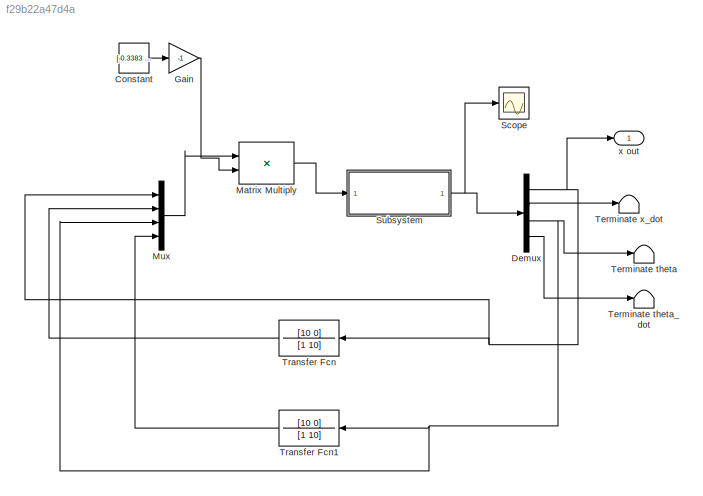
MODEL slx_f29b22a47d4a
KIND model
BLOCK [Constant] Constant
  Value = [-0.3383   -0.7048  -11.4314   -1.5922]
BLOCK [Demux] Demux
  DisplayOption = bar
  Ports = [1, 4]
BLOCK [Gain] Gain
  Gain = -1
  OutDataTypeStr = Inherit: Inherit via internal rule
  ParamDataTypeStr = Inherit: Inherit via internal rule
  SaturateOnIntegerOverflow = off
BLOCK [Product] Matrix Multiply
  InputSameDT = off
  Multiplication = Matrix(*)
  OutDataTypeStr = Inherit: Inherit via internal rule
  Ports = [2, 1]
  RndMeth = Floor
  SaturateOnIntegerOverflow = off
BLOCK [Mux] Mux
  DisplayOption = bar
  Ports = [4, 1]
BLOCK [Scope] Scope
  DataFormat = StructureWithTime
  Floating = off
  NumInputPorts = 1
  Ports = [1]
  SampleTime = 0
  ShowLegends = on
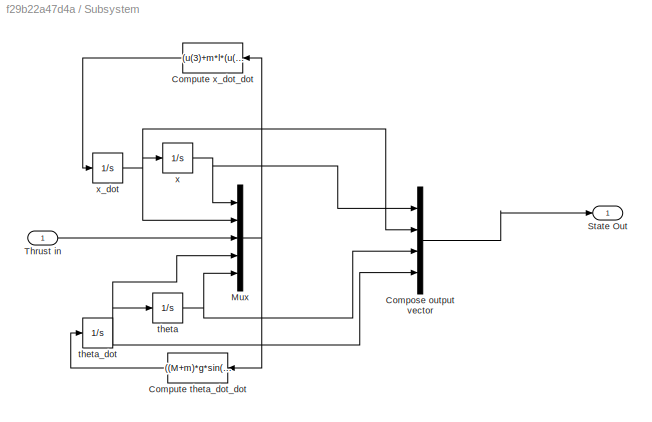
BLOCK [SubSystem] Subsystem
  FunctionWithSeparateData = off
  MaskHideContents = off
  MinAlgLoopOccurrences = off
  Opaque = off
  Ports = [1, 1]
  PropExecContextOutsideSubsystem = off
  RTWSystemCode = Auto
  RequestExecContextInheritance = off
BLOCK [Mux] Subsystem/Compose output vector
  DisplayOption = bar
  Ports = [4, 1]
BLOCK [Fcn] Subsystem/Compute theta_dot_dot
  Expr = ((M+m)*g*sin(u(5))-u(3)*cos(u(5))-m*l*(u(4))^2*sin(u(5))*cos(u(5)))/(l*(M+m*sin(u(5))^2))
BLOCK [Fcn] Subsystem/Compute x_dot_dot
  Expr = (u(3)+m*l*(u(4)^2)*sin(u(5)) - m*g*cos(u(5))*sin(u(5)))/(M+m*sin(u(5))^2)
BLOCK [Mux] Subsystem/Mux
  DisplayOption = bar
  Inputs = 5
  Ports = [5, 1]
BLOCK [Outport] Subsystem/State Out
  IconDisplay = Port number
BLOCK [Inport] Subsystem/Thrust in
  IconDisplay = Port number
BLOCK [Integrator] Subsystem/theta
  InitialCondition = 0.035
  Ports = [1, 1]
BLOCK [Integrator] Subsystem/theta_dot
  InitialCondition = 0.01
  Ports = [1, 1]
BLOCK [Integrator] Subsystem/x
  Ports = [1, 1]
BLOCK [Integrator] Subsystem/x_dot
  Ports = [1, 1]
BLOCK [Terminator] Terminate theta
BLOCK [Terminator] Terminate theta_dot
BLOCK [Terminator] Terminate x_dot
BLOCK [TransferFcn] Transfer Fcn
  Denominator = [1 10]
  Numerator = [10 0]
BLOCK [TransferFcn] Transfer Fcn1
  Denominator = [1 10]
  Numerator = [10 0]
BLOCK [Outport] x out
  IconDisplay = Port number
LINE Constant:1 -> Gain:1
NET Demux:1 -> Mux:1, Transfer Fcn:1, x out:1
LINE Demux:2 -> Terminate x_dot:1
NET Demux:3 -> Mux:3, Terminate theta:1, Transfer Fcn1:1
LINE Demux:4 -> Terminate theta_dot:1
LINE Gain:1 -> Matrix Multiply:2
LINE Matrix Multiply:1 -> Subsystem:1
LINE Mux:1 -> Matrix Multiply:1
LINE Subsystem/Compose output vector:1 -> Subsystem/State Out:1
LINE Subsystem/Compute theta_dot_dot:1 -> Subsystem/theta_dot:1
LINE Subsystem/Compute x_dot_dot:1 -> Subsystem/x_dot:1
NET Subsystem/Mux:1 -> Subsystem/Compute theta_dot_dot:1, Subsystem/Compute x_dot_dot:1
LINE Subsystem/Thrust in:1 -> Subsystem/Mux:3
NET Subsystem/theta:1 -> Subsystem/Compose output vector:3, Subsystem/Mux:5
NET Subsystem/theta_dot:1 -> Subsystem/Compose output vector:4, Subsystem/Mux:4, Subsystem/theta:1
NET Subsystem/x:1 -> Subsystem/Compose output vector:1, Subsystem/Mux:1
NET Subsystem/x_dot:1 -> Subsystem/Compose output vector:2, Subsystem/Mux:2, Subsystem/x:1
NET Subsystem:1 -> Demux:1, Scope:1
LINE Transfer Fcn1:1 -> Mux:4
LINE Transfer Fcn:1 -> Mux:2
note: NET lines group one-source signal fan-out (src -> all destinations, sorted); 1:1 wires keep LINE
